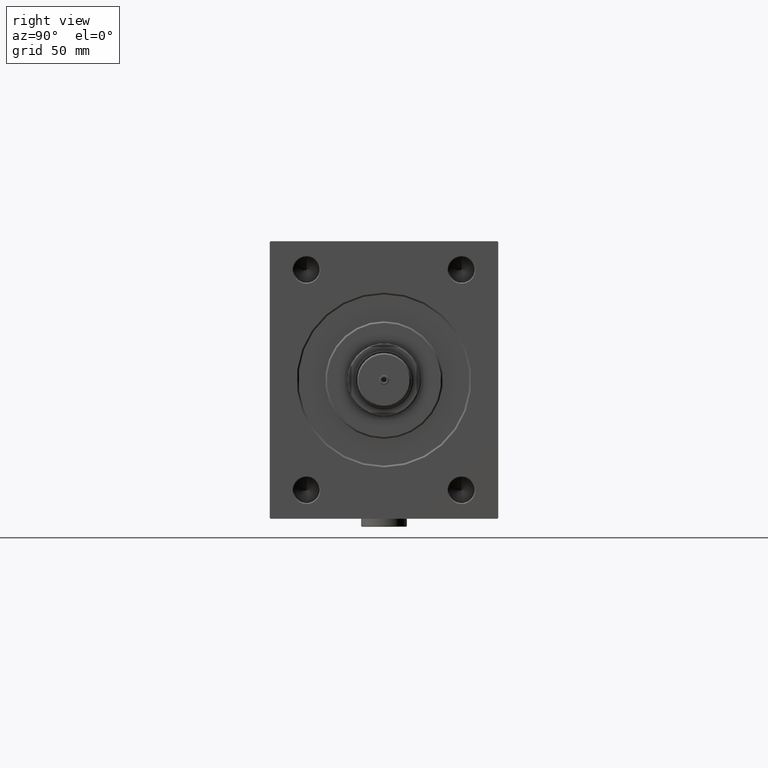
[diagram: clean part render]
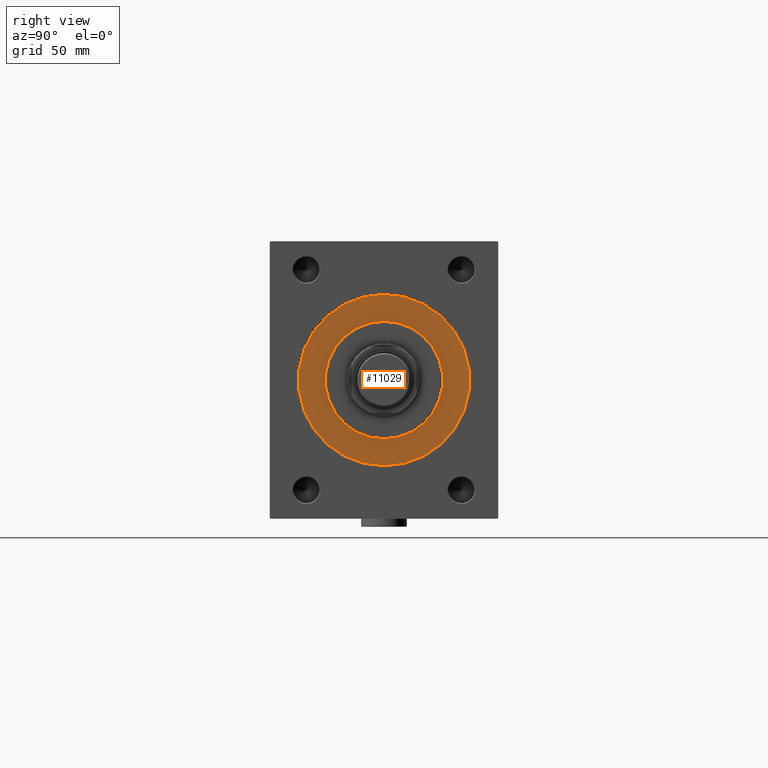
[diagram: same view with one face highlighted and labeled with its STEP entity id]
A machine part, right view. The second image highlights one B-rep face of the part: STEP entity #11029.
In plain terms, the highlighted planar face has unit normal (-1, 0, 0).
Its self-contained STEP definition (entity closure, byte-faithful):
#195 = AXIS2_PLACEMENT_3D ( 'NONE', #12860, #35762, #35049 ) ;
#241 = DIRECTION ( 'NONE',  ( -1.000000000000000000, 0.000000000000000000, 0.000000000000000000 ) ) ;
#3022 = CARTESIAN_POINT ( 'NONE',  ( 0.000000000000000000, 0.000000000000000000, 0.000000000000000000 ) ) ;
#3343 = VERTEX_POINT ( 'NONE', #15353 ) ;
#4745 = EDGE_CURVE ( 'NONE', #17465, #23462, #36390, .T. ) ;
#4839 = VERTEX_POINT ( 'NONE', #40643 ) ;
#6217 = DIRECTION ( 'NONE',  ( 0.000000000000000000, 0.000000000000000000, -1.000000000000000000 ) ) ;
#6487 = DIRECTION ( 'NONE',  ( -1.000000000000000000, 0.000000000000000000, 0.000000000000000000 ) ) ;
#7401 = FACE_OUTER_BOUND ( 'NONE', #13941, .T. ) ;
#8281 = AXIS2_PLACEMENT_3D ( 'NONE', #29125, #48360, #6217 ) ;
#8649 = DIRECTION ( 'NONE',  ( 1.000000000000000000, -0.000000000000000000, 0.000000000000000000 ) ) ;
#10908 = DIRECTION ( 'NONE',  ( 0.000000000000000000, 0.000000000000000000, 1.000000000000000000 ) ) ;
#11029 = ADVANCED_FACE ( 'NONE', ( #45875, #7401 ), #19242, .F. ) ;
#11303 = CIRCLE ( 'NONE', #42006, 52.50000000000000000 ) ;
#12860 = CARTESIAN_POINT ( 'NONE',  ( 0.000000000000000000, 0.000000000000000000, 0.000000000000000000 ) ) ;
#13941 = EDGE_LOOP ( 'NONE', ( #23282, #17568 ) ) ;
#14829 = EDGE_CURVE ( 'NONE', #23462, #17465, #38179, .T. ) ;
#15353 = CARTESIAN_POINT ( 'NONE',  ( 0.000000000000000000, 6.429395695523603956E-15, 52.50000000000000000 ) ) ;
#17465 = VERTEX_POINT ( 'NONE', #17582 ) ;
#17568 = ORIENTED_EDGE ( 'NONE', *, *, #42948, .F. ) ;
#17582 = CARTESIAN_POINT ( 'NONE',  ( 0.000000000000000000, 0.000000000000000000, 36.00000000000000000 ) ) ;
#18987 = CARTESIAN_POINT ( 'NONE',  ( 0.000000000000000000, 0.000000000000000000, 0.000000000000000000 ) ) ;
#19066 = AXIS2_PLACEMENT_3D ( 'NONE', #28108, #8649, #23686 ) ;
#19242 = PLANE ( 'NONE',  #22285 ) ;
#22285 = AXIS2_PLACEMENT_3D ( 'NONE', #18987, #241, #38229 ) ;
#23282 = ORIENTED_EDGE ( 'NONE', *, *, #44331, .F. ) ;
#23462 = VERTEX_POINT ( 'NONE', #26773 ) ;
#23686 = DIRECTION ( 'NONE',  ( 0.000000000000000000, 0.000000000000000000, -1.000000000000000000 ) ) ;
#26773 = CARTESIAN_POINT ( 'NONE',  ( 0.000000000000000000, 4.408728476930470856E-15, -36.00000000000000000 ) ) ;
#28108 = CARTESIAN_POINT ( 'NONE',  ( 0.000000000000000000, 0.000000000000000000, 0.000000000000000000 ) ) ;
#28586 = CIRCLE ( 'NONE', #195, 52.50000000000000000 ) ;
#29125 = CARTESIAN_POINT ( 'NONE',  ( 0.000000000000000000, 0.000000000000000000, 0.000000000000000000 ) ) ;
#35049 = DIRECTION ( 'NONE',  ( 0.000000000000000000, 0.000000000000000000, 1.000000000000000000 ) ) ;
#35762 = DIRECTION ( 'NONE',  ( -1.000000000000000000, 0.000000000000000000, 0.000000000000000000 ) ) ;
#36390 = CIRCLE ( 'NONE', #19066, 36.00000000000000000 ) ;
#38179 = CIRCLE ( 'NONE', #8281, 36.00000000000000000 ) ;
#38229 = DIRECTION ( 'NONE',  ( 0.000000000000000000, 0.000000000000000000, 1.000000000000000000 ) ) ;
#40643 = CARTESIAN_POINT ( 'NONE',  ( 0.000000000000000000, 0.000000000000000000, -52.50000000000000000 ) ) ;
#42006 = AXIS2_PLACEMENT_3D ( 'NONE', #3022, #6487, #10908 ) ;
#42134 = EDGE_LOOP ( 'NONE', ( #45226, #45773 ) ) ;
#42948 = EDGE_CURVE ( 'NONE', #3343, #4839, #28586, .T. ) ;
#44331 = EDGE_CURVE ( 'NONE', #4839, #3343, #11303, .T. ) ;
#45226 = ORIENTED_EDGE ( 'NONE', *, *, #4745, .F. ) ;
#45773 = ORIENTED_EDGE ( 'NONE', *, *, #14829, .F. ) ;
#45875 = FACE_BOUND ( 'NONE', #42134, .T. ) ;
#48360 = DIRECTION ( 'NONE',  ( 1.000000000000000000, -0.000000000000000000, 0.000000000000000000 ) ) ;